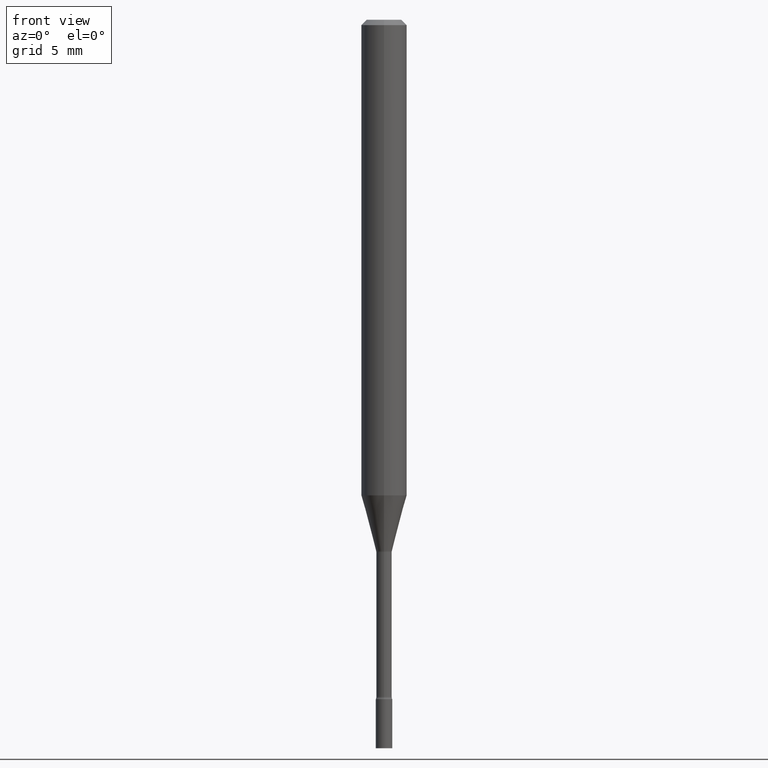
[diagram: clean part render]
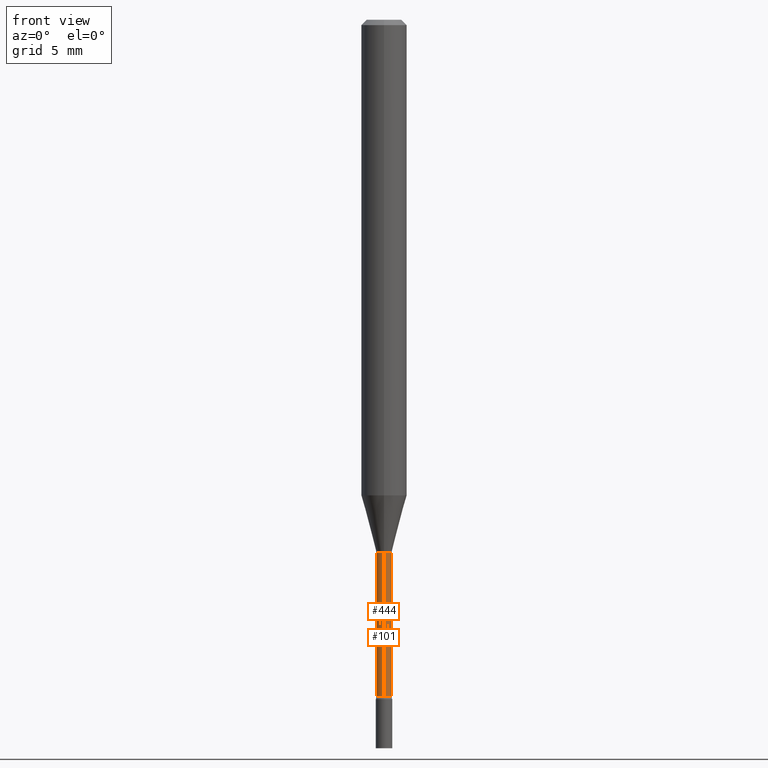
[diagram: same view with one multi-face feature highlighted, each face labeled with its STEP entity id]
A machine part, front view. The highlighted faces form ONE feature: a constant-radius fillet chain: 2 tangent blend faces with common blend radius 0.5372 mm. The faces share edges in the B-rep.
Their STEP definitions:
[1] entity #101 (Cylinder):
#8 = VECTOR ( 'NONE', #81, 39.37007874015748143 ) ;
#13 = ORIENTED_EDGE ( 'NONE', *, *, #242, .F. ) ;
#40 = CARTESIAN_POINT ( 'NONE',  ( 1.502797886133067365E-16, 0.02114999999999489511, -1.461974787463810932 ) ) ;
#41 = VERTEX_POINT ( 'NONE', #333 ) ;
#48 = CARTESIAN_POINT ( 'NONE',  ( -1.476896606330646500E-16, -0.02115000000000001601, 7.384709008776868973E-17 ) ) ;
#50 = VERTEX_POINT ( 'NONE', #379 ) ;
#69 = CARTESIAN_POINT ( 'NONE',  ( 0.000000000000000000, 0.000000000000000000, 0.000000000000000000 ) ) ;
#72 = DIRECTION ( 'NONE',  ( -6.982962677686266711E-15, -1.000000000000000000, 3.491588183818847968E-15 ) ) ;
#78 = DIRECTION ( 'NONE',  ( -6.982962677686266711E-15, -1.000000000000000000, 0.000000000000000000 ) ) ;
#81 = DIRECTION ( 'NONE',  ( -2.445394196737373742E-29, 3.491588183818847574E-15, 1.000000000000000000 ) ) ;
#90 = VECTOR ( 'NONE', #436, 39.37007874015748143 ) ;
#101 = ADVANCED_FACE ( 'NONE', ( #305 ), #230, .T. ) ;
#115 = CIRCLE ( 'NONE', #210, 0.02114999999999999519 ) ;
#199 = DIRECTION ( 'NONE',  ( -2.445394196737374022E-29, 3.491588183818847574E-15, 1.000000000000000000 ) ) ;
#206 = CARTESIAN_POINT ( 'NONE',  ( 3.575104661040359026E-29, -5.104613892949713451E-15, -1.461974787463810932 ) ) ;
#210 = AXIS2_PLACEMENT_3D ( 'NONE', #206, #476, #365 ) ;
#230 = CYLINDRICAL_SURFACE ( 'NONE', #356, 0.02115000000000001601 ) ;
#235 = EDGE_CURVE ( 'NONE', #41, #307, #245, .T. ) ;
#240 = CARTESIAN_POINT ( 'NONE',  ( 4.545451967830983936E-29, -6.490097343884086804E-15, -1.858780876267511539 ) ) ;
#242 = EDGE_CURVE ( 'NONE', #448, #50, #396, .T. ) ;
#245 = LINE ( 'NONE', #251, #90 ) ;
#251 = CARTESIAN_POINT ( 'NONE',  ( 1.502797886132612784E-16, 0.02115000000000001601, -7.384709008776868973E-17 ) ) ;
#255 = EDGE_CURVE ( 'NONE', #50, #307, #115, .T. ) ;
#263 = AXIS2_PLACEMENT_3D ( 'NONE', #240, #199, #78 ) ;
#299 = EDGE_LOOP ( 'NONE', ( #451, #441, #412, #13 ) ) ;
#305 = FACE_OUTER_BOUND ( 'NONE', #299, .T. ) ;
#307 = VERTEX_POINT ( 'NONE', #40 ) ;
#333 = CARTESIAN_POINT ( 'NONE',  ( 1.550759520796875748E-16, 0.02114999999999355590, -1.858780876267511539 ) ) ;
#356 = AXIS2_PLACEMENT_3D ( 'NONE', #69, #424, #72 ) ;
#365 = DIRECTION ( 'NONE',  ( -6.982962677686266711E-15, -1.000000000000000000, 0.000000000000000000 ) ) ;
#374 = CIRCLE ( 'NONE', #263, 0.02115000000000004376 ) ;
#379 = CARTESIAN_POINT ( 'NONE',  ( -1.476896606330287322E-16, -0.02115000000000510222, -1.461974787463810932 ) ) ;
#396 = LINE ( 'NONE', #48, #8 ) ;
#412 = ORIENTED_EDGE ( 'NONE', *, *, #255, .F. ) ;
#424 = DIRECTION ( 'NONE',  ( -2.445394196737374022E-29, 3.491588183818847574E-15, 1.000000000000000000 ) ) ;
#436 = DIRECTION ( 'NONE',  ( -2.445394196737373742E-29, 3.491588183818847574E-15, 1.000000000000000000 ) ) ;
#441 = ORIENTED_EDGE ( 'NONE', *, *, #235, .T. ) ;
#448 = VERTEX_POINT ( 'NONE', #474 ) ;
#450 = EDGE_CURVE ( 'NONE', #448, #41, #374, .T. ) ;
#451 = ORIENTED_EDGE ( 'NONE', *, *, #450, .T. ) ;
#474 = CARTESIAN_POINT ( 'NONE',  ( -1.476896606330193644E-16, -0.02115000000000653163, -1.858780876267511539 ) ) ;
#476 = DIRECTION ( 'NONE',  ( -2.445394196737374022E-29, 3.491588183818847574E-15, 1.000000000000000000 ) ) ;
[2] entity #444 (Cylinder):
#8 = VECTOR ( 'NONE', #81, 39.37007874015748143 ) ;
#32 = CYLINDRICAL_SURFACE ( 'NONE', #406, 0.02115000000000001601 ) ;
#40 = CARTESIAN_POINT ( 'NONE',  ( 1.502797886133067365E-16, 0.02114999999999489511, -1.461974787463810932 ) ) ;
#41 = VERTEX_POINT ( 'NONE', #333 ) ;
#47 = EDGE_CURVE ( 'NONE', #41, #448, #227, .T. ) ;
#48 = CARTESIAN_POINT ( 'NONE',  ( -1.476896606330646500E-16, -0.02115000000000001601, 7.384709008776868973E-17 ) ) ;
#50 = VERTEX_POINT ( 'NONE', #379 ) ;
#73 = FACE_OUTER_BOUND ( 'NONE', #371, .T. ) ;
#81 = DIRECTION ( 'NONE',  ( -2.445394196737373742E-29, 3.491588183818847574E-15, 1.000000000000000000 ) ) ;
#88 = CIRCLE ( 'NONE', #154, 0.02114999999999999519 ) ;
#90 = VECTOR ( 'NONE', #436, 39.37007874015748143 ) ;
#99 = DIRECTION ( 'NONE',  ( -6.982962677686266711E-15, -1.000000000000000000, 0.000000000000000000 ) ) ;
#100 = DIRECTION ( 'NONE',  ( -6.982962677686266711E-15, -1.000000000000000000, 0.000000000000000000 ) ) ;
#112 = DIRECTION ( 'NONE',  ( -2.445394196737374022E-29, 3.491588183818847574E-15, 1.000000000000000000 ) ) ;
#154 = AXIS2_PLACEMENT_3D ( 'NONE', #490, #301, #99 ) ;
#158 = DIRECTION ( 'NONE',  ( -6.982962677686266711E-15, -1.000000000000000000, 3.491588183818847968E-15 ) ) ;
#190 = CARTESIAN_POINT ( 'NONE',  ( 0.000000000000000000, 0.000000000000000000, 0.000000000000000000 ) ) ;
#227 = CIRCLE ( 'NONE', #325, 0.02115000000000004376 ) ;
#235 = EDGE_CURVE ( 'NONE', #41, #307, #245, .T. ) ;
#242 = EDGE_CURVE ( 'NONE', #448, #50, #396, .T. ) ;
#245 = LINE ( 'NONE', #251, #90 ) ;
#251 = CARTESIAN_POINT ( 'NONE',  ( 1.502797886132612784E-16, 0.02115000000000001601, -7.384709008776868973E-17 ) ) ;
#294 = DIRECTION ( 'NONE',  ( -2.445394196737374022E-29, 3.491588183818847574E-15, 1.000000000000000000 ) ) ;
#297 = CARTESIAN_POINT ( 'NONE',  ( 4.545451967830983936E-29, -6.490097343884086804E-15, -1.858780876267511539 ) ) ;
#301 = DIRECTION ( 'NONE',  ( -2.445394196737374022E-29, 3.491588183818847574E-15, 1.000000000000000000 ) ) ;
#307 = VERTEX_POINT ( 'NONE', #40 ) ;
#325 = AXIS2_PLACEMENT_3D ( 'NONE', #297, #294, #100 ) ;
#330 = ORIENTED_EDGE ( 'NONE', *, *, #47, .T. ) ;
#333 = CARTESIAN_POINT ( 'NONE',  ( 1.550759520796875748E-16, 0.02114999999999355590, -1.858780876267511539 ) ) ;
#371 = EDGE_LOOP ( 'NONE', ( #482, #330, #386, #447 ) ) ;
#379 = CARTESIAN_POINT ( 'NONE',  ( -1.476896606330287322E-16, -0.02115000000000510222, -1.461974787463810932 ) ) ;
#386 = ORIENTED_EDGE ( 'NONE', *, *, #242, .T. ) ;
#396 = LINE ( 'NONE', #48, #8 ) ;
#406 = AXIS2_PLACEMENT_3D ( 'NONE', #190, #112, #158 ) ;
#436 = DIRECTION ( 'NONE',  ( -2.445394196737373742E-29, 3.491588183818847574E-15, 1.000000000000000000 ) ) ;
#444 = ADVANCED_FACE ( 'NONE', ( #73 ), #32, .T. ) ;
#447 = ORIENTED_EDGE ( 'NONE', *, *, #517, .F. ) ;
#448 = VERTEX_POINT ( 'NONE', #474 ) ;
#474 = CARTESIAN_POINT ( 'NONE',  ( -1.476896606330193644E-16, -0.02115000000000653163, -1.858780876267511539 ) ) ;
#482 = ORIENTED_EDGE ( 'NONE', *, *, #235, .F. ) ;
#490 = CARTESIAN_POINT ( 'NONE',  ( 3.575104661040359026E-29, -5.104613892949713451E-15, -1.461974787463810932 ) ) ;
#517 = EDGE_CURVE ( 'NONE', #307, #50, #88, .T. ) ;